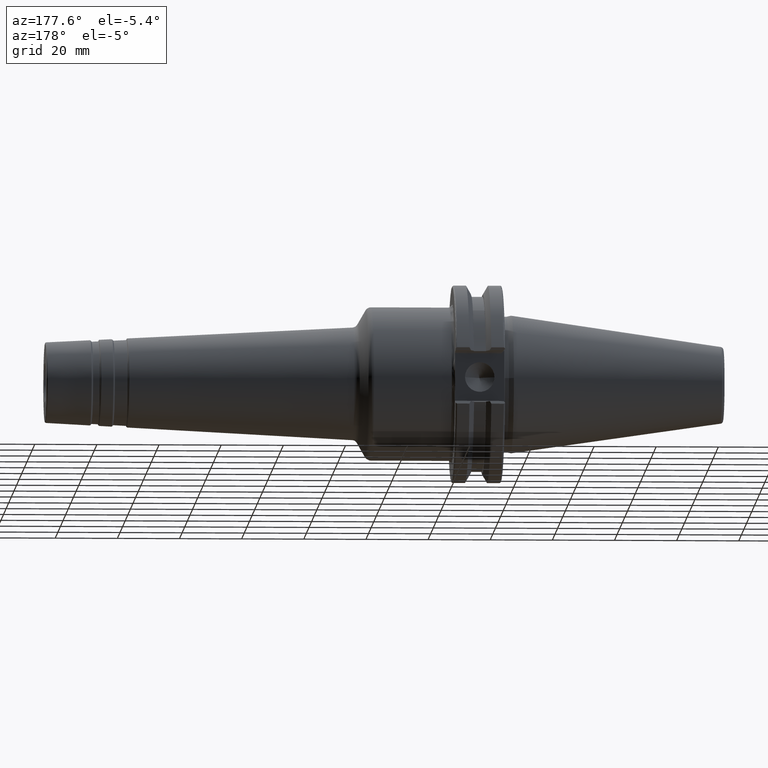
[diagram: clean part render]
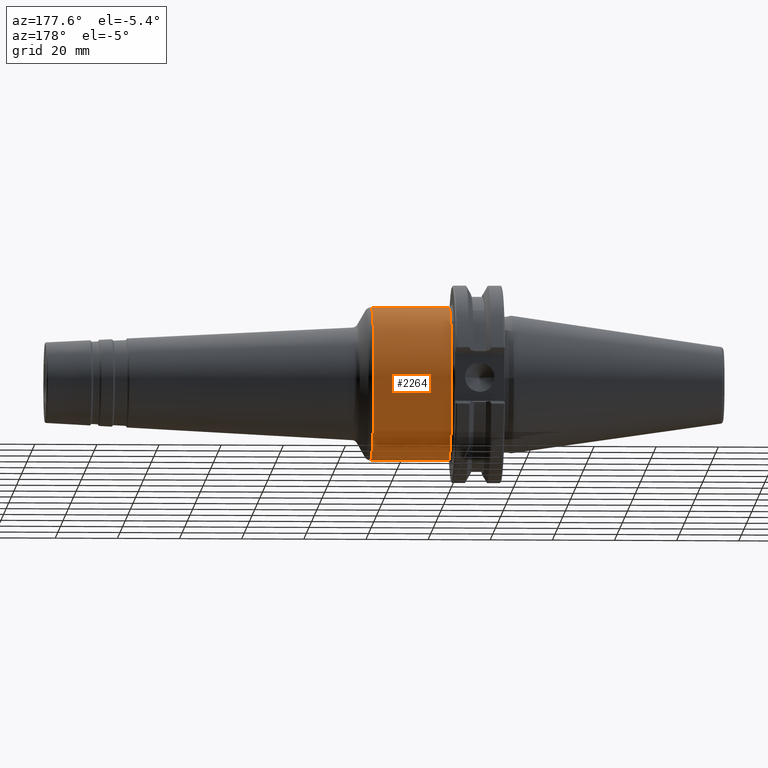
[diagram: same view with one face highlighted and labeled with its STEP entity id]
A machine part, auxiliary view. The second image highlights one B-rep face of the part: STEP entity #2264.
In plain terms, the highlighted cylindrical surface (partial cylindrical patch) has radius 24.75 mm, axis along (1, 0, 0).
Its self-contained STEP definition (entity closure, byte-faithful):
#230=CARTESIAN_POINT('',(2.0075E1,0.E0,0.E0));
#231=DIRECTION('',(1.E0,0.E0,0.E0));
#232=DIRECTION('',(0.E0,0.E0,-1.E0));
#233=AXIS2_PLACEMENT_3D('',#230,#231,#232);
#250=DIRECTION('',(-1.E0,0.E0,0.E0));
#251=VECTOR('',#250,2.503719834631E1);
#252=CARTESIAN_POINT('',(4.511219834631E1,0.E0,-2.475E1));
#253=LINE('',#252,#251);
#254=DIRECTION('',(-1.E0,0.E0,0.E0));
#255=VECTOR('',#254,2.503719834631E1);
#256=CARTESIAN_POINT('',(4.511219834631E1,0.E0,2.475E1));
#257=LINE('',#256,#255);
#263=CARTESIAN_POINT('',(4.511219834631E1,0.E0,0.E0));
#264=DIRECTION('',(1.E0,0.E0,0.E0));
#265=DIRECTION('',(0.E0,0.E0,-1.E0));
#266=AXIS2_PLACEMENT_3D('',#263,#264,#265);
#1770=CARTESIAN_POINT('',(4.511219834631E1,0.E0,-2.475E1));
#1771=VERTEX_POINT('',#1770);
#1772=CARTESIAN_POINT('',(2.0075E1,0.E0,-2.475E1));
#1773=VERTEX_POINT('',#1772);
#1826=CARTESIAN_POINT('',(4.511219834631E1,0.E0,2.475E1));
#1827=VERTEX_POINT('',#1826);
#1828=CARTESIAN_POINT('',(2.0075E1,0.E0,2.475E1));
#1829=VERTEX_POINT('',#1828);
#2252=CARTESIAN_POINT('',(1.25275E1,0.E0,0.E0));
#2253=DIRECTION('',(1.E0,0.E0,0.E0));
#2254=DIRECTION('',(0.E0,0.E0,1.E0));
#2255=AXIS2_PLACEMENT_3D('',#2252,#2253,#2254);
#2256=CYLINDRICAL_SURFACE('',#2255,2.475E1);
#2257=ORIENTED_EDGE('',*,*,#2242,.F.);
#2259=ORIENTED_EDGE('',*,*,#2258,.T.);
#2260=ORIENTED_EDGE('',*,*,#2245,.T.);
#2261=ORIENTED_EDGE('',*,*,#2211,.F.);
#2262=EDGE_LOOP('',(#2257,#2259,#2260,#2261));
#2263=FACE_OUTER_BOUND('',#2262,.F.);
#2264=ADVANCED_FACE('',(#2263),#2256,.T.);
#234=CIRCLE('',#233,2.475E1);
#267=CIRCLE('',#266,2.475E1);
#2211=EDGE_CURVE('',#1773,#1829,#234,.T.);
#2242=EDGE_CURVE('',#1771,#1773,#253,.T.);
#2245=EDGE_CURVE('',#1827,#1829,#257,.T.);
#2258=EDGE_CURVE('',#1771,#1827,#267,.T.);